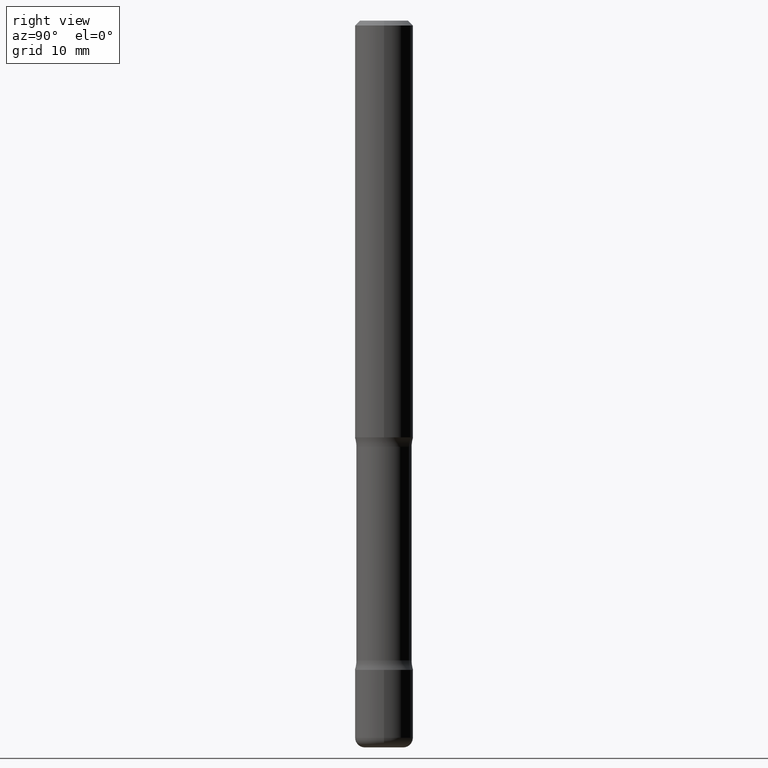
[diagram: clean part render]
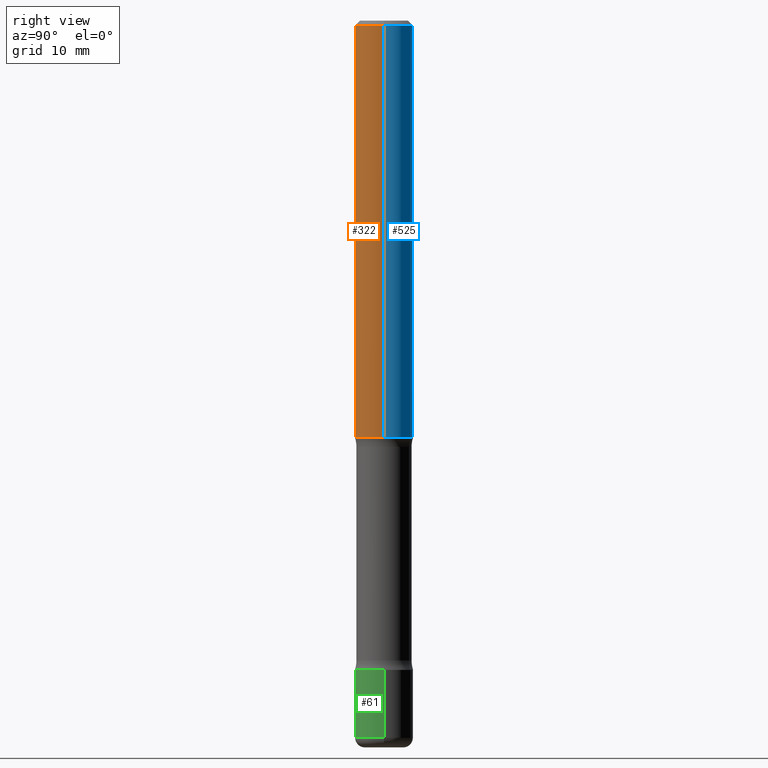
[diagram: same view with three faces highlighted in distinct colors, each labeled with its STEP entity id]
A machine part, right view with three faces highlighted in distinct colors.
Their STEP definitions:

[orange] entity #322 — the highlighted cylindrical surface (edge-blend (fillet) strip) has radius 2.9997 mm, axis along (-0, 0, 1).
#24 = DIRECTION ( 'NONE',  ( 1.000000000000000000, -6.982962677686267499E-15, 0.000000000000000000 ) ) ;
#27 = ORIENTED_EDGE ( 'NONE', *, *, #155, .F. ) ;
#28 = AXIS2_PLACEMENT_3D ( 'NONE', #279, #283, #67 ) ;
#33 = CARTESIAN_POINT ( 'NONE',  ( 4.140178688871433218E-29, -5.911077906661440642E-15, -1.692999999999998506 ) ) ;
#41 = VECTOR ( 'NONE', #392, 39.37007874015748143 ) ;
#67 = DIRECTION ( 'NONE',  ( 1.000000000000000000, -6.982962677686266711E-15, 0.000000000000000000 ) ) ;
#76 = DIRECTION ( 'NONE',  ( -2.445468806185136877E-29, 3.491481338843145188E-15, 1.000000000000000000 ) ) ;
#84 = DIRECTION ( 'NONE',  ( -2.445468806185136597E-29, 3.491481338843145583E-15, 1.000000000000000000 ) ) ;
#98 = ORIENTED_EDGE ( 'NONE', *, *, #227, .F. ) ;
#107 = CARTESIAN_POINT ( 'NONE',  ( -0.1181000000000004824, 8.391509709326817470E-16, -5.809262341591066905E-30 ) ) ;
#119 = ORIENTED_EDGE ( 'NONE', *, *, #498, .T. ) ;
#128 = LINE ( 'NONE', #317, #41 ) ;
#146 = VERTEX_POINT ( 'NONE', #199 ) ;
#155 = EDGE_CURVE ( 'NONE', #146, #277, #341, .T. ) ;
#197 = VECTOR ( 'NONE', #76, 39.37007874015748143 ) ;
#199 = CARTESIAN_POINT ( 'NONE',  ( -0.1181000000000006628, -2.151302795786464307E-15, -1.692999999999998506 ) ) ;
#222 = CARTESIAN_POINT ( 'NONE',  ( 0.000000000000000000, 0.000000000000000000, 0.000000000000000000 ) ) ;
#227 = EDGE_CURVE ( 'NONE', #277, #275, #471, .T. ) ;
#240 = AXIS2_PLACEMENT_3D ( 'NONE', #222, #84, #521 ) ;
#259 = CIRCLE ( 'NONE', #415, 0.1181000000000006489 ) ;
#275 = VERTEX_POINT ( 'NONE', #406 ) ;
#277 = VERTEX_POINT ( 'NONE', #533 ) ;
#279 = CARTESIAN_POINT ( 'NONE',  ( 4.890937612370289799E-31, -6.982962677686315028E-17, -0.02000000000000006981 ) ) ;
#283 = DIRECTION ( 'NONE',  ( -2.445468806185136597E-29, 3.491481338843145583E-15, 1.000000000000000000 ) ) ;
#303 = VERTEX_POINT ( 'NONE', #537 ) ;
#317 = CARTESIAN_POINT ( 'NONE',  ( 0.1181000000000004824, -8.246878922347513194E-16, 5.758764772215023562E-30 ) ) ;
#322 = ADVANCED_FACE ( 'NONE', ( #483 ), #534, .T. ) ;
#341 = LINE ( 'NONE', #107, #197 ) ;
#392 = DIRECTION ( 'NONE',  ( -2.445468806185136877E-29, 3.491481338843145188E-15, 1.000000000000000000 ) ) ;
#406 = CARTESIAN_POINT ( 'NONE',  ( 0.1181000000000003020, -8.800544403136831054E-16, -0.02000000000000006981 ) ) ;
#415 = AXIS2_PLACEMENT_3D ( 'NONE', #33, #507, #24 ) ;
#426 = EDGE_LOOP ( 'NONE', ( #27, #119, #531, #98 ) ) ;
#471 = CIRCLE ( 'NONE', #28, 0.1181000000000003020 ) ;
#483 = FACE_OUTER_BOUND ( 'NONE', #426, .T. ) ;
#498 = EDGE_CURVE ( 'NONE', #146, #303, #259, .T. ) ;
#507 = DIRECTION ( 'NONE',  ( -2.445468806185136597E-29, 3.491481338843145583E-15, 1.000000000000000000 ) ) ;
#516 = EDGE_CURVE ( 'NONE', #303, #275, #128, .T. ) ;
#521 = DIRECTION ( 'NONE',  ( 1.000000000000000000, -6.982962677686265133E-15, 4.876176775795935793E-29 ) ) ;
#531 = ORIENTED_EDGE ( 'NONE', *, *, #516, .T. ) ;
#533 = CARTESIAN_POINT ( 'NONE',  ( -0.1181000000000003020, 7.548582654578872324E-16, -0.02000000000000006981 ) ) ;
#534 = CYLINDRICAL_SURFACE ( 'NONE', #240, 0.1181000000000004824 ) ;
#537 = CARTESIAN_POINT ( 'NONE',  ( 0.1181000000000006489, -6.735765798896192849E-15, -1.692999999999998506 ) ) ;

[blue] entity #525 — the highlighted cylindrical surface (edge-blend (fillet) strip) has radius 2.9997 mm, axis along (-0, 0, 1).
#41 = VECTOR ( 'NONE', #392, 39.37007874015748143 ) ;
#50 = DIRECTION ( 'NONE',  ( 1.000000000000000000, -6.982962677686267499E-15, 0.000000000000000000 ) ) ;
#59 = CIRCLE ( 'NONE', #421, 0.1181000000000006489 ) ;
#76 = DIRECTION ( 'NONE',  ( -2.445468806185136877E-29, 3.491481338843145188E-15, 1.000000000000000000 ) ) ;
#102 = EDGE_LOOP ( 'NONE', ( #460, #440, #271, #124 ) ) ;
#107 = CARTESIAN_POINT ( 'NONE',  ( -0.1181000000000004824, 8.391509709326817470E-16, -5.809262341591066905E-30 ) ) ;
#124 = ORIENTED_EDGE ( 'NONE', *, *, #516, .F. ) ;
#128 = LINE ( 'NONE', #317, #41 ) ;
#146 = VERTEX_POINT ( 'NONE', #199 ) ;
#155 = EDGE_CURVE ( 'NONE', #146, #277, #341, .T. ) ;
#178 = FACE_OUTER_BOUND ( 'NONE', #102, .T. ) ;
#191 = EDGE_CURVE ( 'NONE', #303, #146, #59, .T. ) ;
#195 = DIRECTION ( 'NONE',  ( -2.445468806185136597E-29, 3.491481338843145583E-15, 1.000000000000000000 ) ) ;
#197 = VECTOR ( 'NONE', #76, 39.37007874015748143 ) ;
#199 = CARTESIAN_POINT ( 'NONE',  ( -0.1181000000000006628, -2.151302795786464307E-15, -1.692999999999998506 ) ) ;
#206 = AXIS2_PLACEMENT_3D ( 'NONE', #254, #522, #339 ) ;
#233 = DIRECTION ( 'NONE',  ( 1.000000000000000000, -6.982962677686266711E-15, 0.000000000000000000 ) ) ;
#252 = CARTESIAN_POINT ( 'NONE',  ( 4.140178688871433218E-29, -5.911077906661440642E-15, -1.692999999999998506 ) ) ;
#254 = CARTESIAN_POINT ( 'NONE',  ( 0.000000000000000000, 0.000000000000000000, 0.000000000000000000 ) ) ;
#262 = CYLINDRICAL_SURFACE ( 'NONE', #206, 0.1181000000000004824 ) ;
#271 = ORIENTED_EDGE ( 'NONE', *, *, #466, .F. ) ;
#275 = VERTEX_POINT ( 'NONE', #406 ) ;
#277 = VERTEX_POINT ( 'NONE', #533 ) ;
#281 = DIRECTION ( 'NONE',  ( -2.445468806185136597E-29, 3.491481338843145583E-15, 1.000000000000000000 ) ) ;
#303 = VERTEX_POINT ( 'NONE', #537 ) ;
#317 = CARTESIAN_POINT ( 'NONE',  ( 0.1181000000000004824, -8.246878922347513194E-16, 5.758764772215023562E-30 ) ) ;
#339 = DIRECTION ( 'NONE',  ( 1.000000000000000000, -6.982962677686265133E-15, 4.876176775795935793E-29 ) ) ;
#341 = LINE ( 'NONE', #107, #197 ) ;
#392 = DIRECTION ( 'NONE',  ( -2.445468806185136877E-29, 3.491481338843145188E-15, 1.000000000000000000 ) ) ;
#406 = CARTESIAN_POINT ( 'NONE',  ( 0.1181000000000003020, -8.800544403136831054E-16, -0.02000000000000006981 ) ) ;
#421 = AXIS2_PLACEMENT_3D ( 'NONE', #252, #195, #50 ) ;
#440 = ORIENTED_EDGE ( 'NONE', *, *, #155, .T. ) ;
#459 = CARTESIAN_POINT ( 'NONE',  ( 4.890937612370289799E-31, -6.982962677686315028E-17, -0.02000000000000006981 ) ) ;
#460 = ORIENTED_EDGE ( 'NONE', *, *, #191, .T. ) ;
#466 = EDGE_CURVE ( 'NONE', #275, #277, #482, .T. ) ;
#482 = CIRCLE ( 'NONE', #528, 0.1181000000000003020 ) ;
#516 = EDGE_CURVE ( 'NONE', #303, #275, #128, .T. ) ;
#522 = DIRECTION ( 'NONE',  ( -2.445468806185136597E-29, 3.491481338843145583E-15, 1.000000000000000000 ) ) ;
#525 = ADVANCED_FACE ( 'NONE', ( #178 ), #262, .T. ) ;
#528 = AXIS2_PLACEMENT_3D ( 'NONE', #459, #281, #233 ) ;
#533 = CARTESIAN_POINT ( 'NONE',  ( -0.1181000000000003020, 7.548582654578872324E-16, -0.02000000000000006981 ) ) ;
#537 = CARTESIAN_POINT ( 'NONE',  ( 0.1181000000000006489, -6.735765798896192849E-15, -1.692999999999998506 ) ) ;

[green] entity #61 — the highlighted cylindrical surface (edge-blend (fillet) strip) has radius 2.9997 mm, axis along (-0, 0, 1).
#4 = VERTEX_POINT ( 'NONE', #22 ) ;
#22 = CARTESIAN_POINT ( 'NONE',  ( -0.1181000000000007877, -9.332930761652935594E-15, -2.913399999999998879 ) ) ;
#56 = CARTESIAN_POINT ( 'NONE',  ( -0.1181000000000004407, -8.851804633160347123E-15, -2.637799999999998146 ) ) ;
#61 = ADVANCED_FACE ( 'NONE', ( #161 ), #70, .T. ) ;
#70 = CYLINDRICAL_SURFACE ( 'NONE', #325, 0.1181000000000005656 ) ;
#83 = DIRECTION ( 'NONE',  ( -2.445468806185136877E-29, 3.491481338843145188E-15, 1.000000000000000000 ) ) ;
#91 = CIRCLE ( 'NONE', #245, 0.1181000000000004407 ) ;
#109 = DIRECTION ( 'NONE',  ( -2.445468806185136597E-29, 3.491481338843145583E-15, 1.000000000000000000 ) ) ;
#111 = CARTESIAN_POINT ( 'NONE',  ( 7.124628819939774466E-29, -1.017208173258561774E-14, -2.913399999999998879 ) ) ;
#132 = CARTESIAN_POINT ( 'NONE',  ( 0.1181000000000005656, -8.246878922347520097E-16, 5.758764772215027766E-30 ) ) ;
#156 = CARTESIAN_POINT ( 'NONE',  ( 0.1181000000000007877, -1.099676962482037073E-14, -2.913399999999998879 ) ) ;
#157 = CARTESIAN_POINT ( 'NONE',  ( 6.450657616955149868E-29, -9.209829475600442370E-15, -2.637799999999998146 ) ) ;
#161 = FACE_OUTER_BOUND ( 'NONE', #298, .T. ) ;
#171 = LINE ( 'NONE', #484, #379 ) ;
#185 = EDGE_CURVE ( 'NONE', #4, #458, #218, .T. ) ;
#212 = EDGE_CURVE ( 'NONE', #458, #387, #305, .T. ) ;
#213 = DIRECTION ( 'NONE',  ( -2.445468806185136877E-29, 3.491481338843145188E-15, 1.000000000000000000 ) ) ;
#218 = CIRCLE ( 'NONE', #258, 0.1181000000000006767 ) ;
#231 = VECTOR ( 'NONE', #83, 39.37007874015748143 ) ;
#245 = AXIS2_PLACEMENT_3D ( 'NONE', #157, #370, #545 ) ;
#258 = AXIS2_PLACEMENT_3D ( 'NONE', #111, #439, #294 ) ;
#260 = ORIENTED_EDGE ( 'NONE', *, *, #185, .T. ) ;
#294 = DIRECTION ( 'NONE',  ( 1.000000000000000000, -6.982962677686265922E-15, 0.000000000000000000 ) ) ;
#298 = EDGE_LOOP ( 'NONE', ( #536, #260, #362, #451 ) ) ;
#305 = LINE ( 'NONE', #132, #231 ) ;
#325 = AXIS2_PLACEMENT_3D ( 'NONE', #334, #109, #472 ) ;
#334 = CARTESIAN_POINT ( 'NONE',  ( 0.000000000000000000, 0.000000000000000000, 0.000000000000000000 ) ) ;
#362 = ORIENTED_EDGE ( 'NONE', *, *, #212, .T. ) ;
#370 = DIRECTION ( 'NONE',  ( -2.445468806185136597E-29, 3.491481338843145583E-15, 1.000000000000000000 ) ) ;
#373 = VERTEX_POINT ( 'NONE', #56 ) ;
#379 = VECTOR ( 'NONE', #213, 39.37007874015748143 ) ;
#387 = VERTEX_POINT ( 'NONE', #462 ) ;
#416 = EDGE_CURVE ( 'NONE', #373, #387, #91, .T. ) ;
#439 = DIRECTION ( 'NONE',  ( -2.445468806185136597E-29, 3.491481338843145583E-15, 1.000000000000000000 ) ) ;
#451 = ORIENTED_EDGE ( 'NONE', *, *, #416, .F. ) ;
#458 = VERTEX_POINT ( 'NONE', #156 ) ;
#462 = CARTESIAN_POINT ( 'NONE',  ( 0.1181000000000004407, -1.003451736783519379E-14, -2.637799999999998146 ) ) ;
#472 = DIRECTION ( 'NONE',  ( 1.000000000000000000, -6.982962677686266711E-15, 4.876176775795935793E-29 ) ) ;
#484 = CARTESIAN_POINT ( 'NONE',  ( -0.1181000000000005656, 8.391509709326823386E-16, -5.809262341591071810E-30 ) ) ;
#508 = EDGE_CURVE ( 'NONE', #4, #373, #171, .T. ) ;
#536 = ORIENTED_EDGE ( 'NONE', *, *, #508, .F. ) ;
#545 = DIRECTION ( 'NONE',  ( 1.000000000000000000, -6.982962677686262766E-15, 0.000000000000000000 ) ) ;